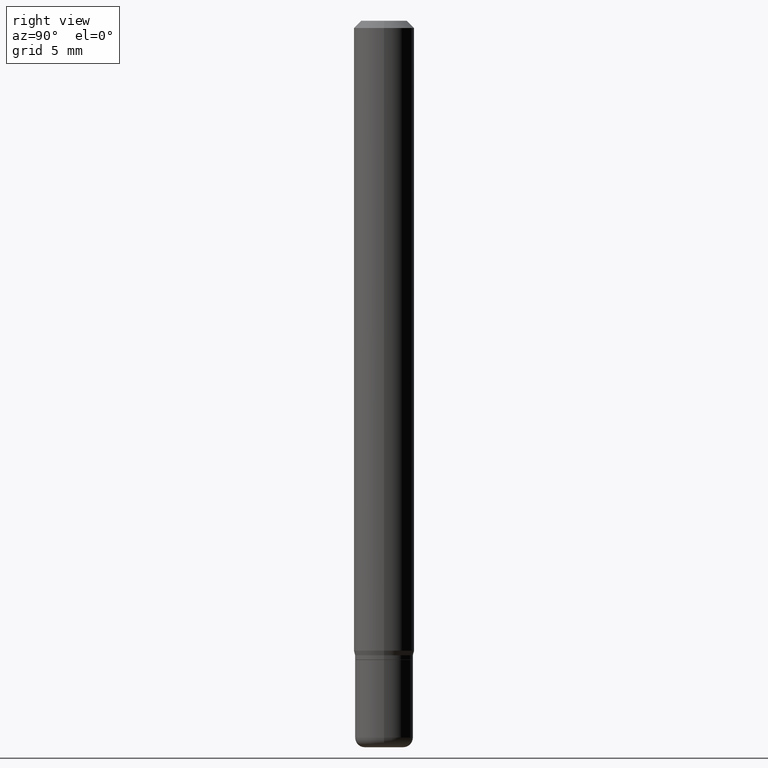
[diagram: clean part render]
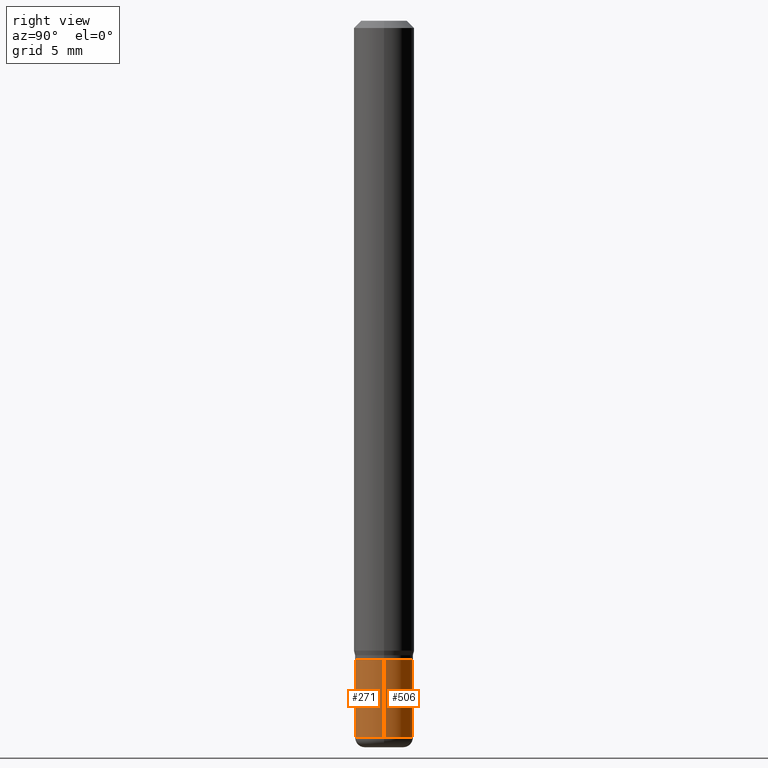
[diagram: same view with one multi-face feature highlighted, each face labeled with its STEP entity id]
A machine part, right view. The highlighted faces form ONE feature: a constant-radius fillet chain: 2 tangent blend faces with common blend radius 1.524 mm. The faces share edges in the B-rep.
Their STEP definitions:
[1] entity #506 (Cylinder):
#11 = DIRECTION ( 'NONE',  ( -2.445468806185136877E-29, 3.491481338843145188E-15, 1.000000000000000000 ) ) ;
#15 = CARTESIAN_POINT ( 'NONE',  ( 0.05999999999999999778, -5.027733127934128282E-15, -1.320000000000000062 ) ) ;
#21 = CIRCLE ( 'NONE', #202, 0.05999999999999999778 ) ;
#26 = ORIENTED_EDGE ( 'NONE', *, *, #77, .F. ) ;
#48 = LINE ( 'NONE', #369, #381 ) ;
#55 = CARTESIAN_POINT ( 'NONE',  ( -0.05999999999999999778, -4.461748232924343562E-15, -1.320000000000000062 ) ) ;
#64 = ORIENTED_EDGE ( 'NONE', *, *, #180, .T. ) ;
#70 = DIRECTION ( 'NONE',  ( 1.000000000000000000, -6.982962677686264344E-15, 0.000000000000000000 ) ) ;
#76 = CARTESIAN_POINT ( 'NONE',  ( 0.06000000000000001860, -4.189777606611761407E-16, 2.925706065477562457E-30 ) ) ;
#77 = EDGE_CURVE ( 'NONE', #371, #416, #21, .T. ) ;
#88 = DIRECTION ( 'NONE',  ( 1.000000000000000000, -6.982962677686266711E-15, 4.876176775795935793E-29 ) ) ;
#97 = AXIS2_PLACEMENT_3D ( 'NONE', #474, #433, #70 ) ;
#120 = AXIS2_PLACEMENT_3D ( 'NONE', #301, #460, #88 ) ;
#138 = CYLINDRICAL_SURFACE ( 'NONE', #120, 0.06000000000000001860 ) ;
#150 = DIRECTION ( 'NONE',  ( -2.445468806185136597E-29, 3.491481338843145583E-15, 1.000000000000000000 ) ) ;
#172 = VERTEX_POINT ( 'NONE', #313 ) ;
#180 = EDGE_CURVE ( 'NONE', #172, #374, #323, .T. ) ;
#193 = CARTESIAN_POINT ( 'NONE',  ( 3.228018824164380442E-29, -4.608755367272952437E-15, -1.320000000000000062 ) ) ;
#198 = ORIENTED_EDGE ( 'NONE', *, *, #377, .T. ) ;
#202 = AXIS2_PLACEMENT_3D ( 'NONE', #193, #150, #260 ) ;
#223 = VECTOR ( 'NONE', #403, 39.37007874015748143 ) ;
#246 = CARTESIAN_POINT ( 'NONE',  ( -0.06000000000000003247, -4.461748232924343562E-15, -1.479999999999999982 ) ) ;
#260 = DIRECTION ( 'NONE',  ( 1.000000000000000000, -6.982962677686268288E-15, 0.000000000000000000 ) ) ;
#290 = EDGE_CURVE ( 'NONE', #172, #371, #440, .T. ) ;
#301 = CARTESIAN_POINT ( 'NONE',  ( 0.000000000000000000, 0.000000000000000000, 0.000000000000000000 ) ) ;
#313 = CARTESIAN_POINT ( 'NONE',  ( 0.06000000000000003247, -5.586370142149031512E-15, -1.479999999999999982 ) ) ;
#322 = ORIENTED_EDGE ( 'NONE', *, *, #290, .F. ) ;
#323 = CIRCLE ( 'NONE', #97, 0.06000000000000003247 ) ;
#369 = CARTESIAN_POINT ( 'NONE',  ( -0.06000000000000001860, 4.263256414560602437E-16, -2.951361054152944114E-30 ) ) ;
#371 = VERTEX_POINT ( 'NONE', #15 ) ;
#374 = VERTEX_POINT ( 'NONE', #246 ) ;
#377 = EDGE_CURVE ( 'NONE', #374, #416, #48, .T. ) ;
#381 = VECTOR ( 'NONE', #11, 39.37007874015748143 ) ;
#403 = DIRECTION ( 'NONE',  ( -2.445468806185136877E-29, 3.491481338843145188E-15, 1.000000000000000000 ) ) ;
#416 = VERTEX_POINT ( 'NONE', #55 ) ;
#433 = DIRECTION ( 'NONE',  ( -2.445468806185136597E-29, 3.491481338843145583E-15, 1.000000000000000000 ) ) ;
#440 = LINE ( 'NONE', #76, #223 ) ;
#460 = DIRECTION ( 'NONE',  ( -2.445468806185136597E-29, 3.491481338843145583E-15, 1.000000000000000000 ) ) ;
#474 = CARTESIAN_POINT ( 'NONE',  ( 3.619293833154002365E-29, -5.167392381487854879E-15, -1.479999999999999982 ) ) ;
#492 = EDGE_LOOP ( 'NONE', ( #64, #198, #26, #322 ) ) ;
#499 = FACE_OUTER_BOUND ( 'NONE', #492, .T. ) ;
#506 = ADVANCED_FACE ( 'NONE', ( #499 ), #138, .T. ) ;
[2] entity #271 (Cylinder):
#11 = DIRECTION ( 'NONE',  ( -2.445468806185136877E-29, 3.491481338843145188E-15, 1.000000000000000000 ) ) ;
#15 = CARTESIAN_POINT ( 'NONE',  ( 0.05999999999999999778, -5.027733127934128282E-15, -1.320000000000000062 ) ) ;
#28 = CARTESIAN_POINT ( 'NONE',  ( 3.619293833154002365E-29, -5.167392381487854879E-15, -1.479999999999999982 ) ) ;
#29 = EDGE_CURVE ( 'NONE', #374, #172, #486, .T. ) ;
#45 = CARTESIAN_POINT ( 'NONE',  ( 0.000000000000000000, 0.000000000000000000, 0.000000000000000000 ) ) ;
#48 = LINE ( 'NONE', #369, #381 ) ;
#55 = CARTESIAN_POINT ( 'NONE',  ( -0.05999999999999999778, -4.461748232924343562E-15, -1.320000000000000062 ) ) ;
#66 = AXIS2_PLACEMENT_3D ( 'NONE', #28, #147, #318 ) ;
#75 = CIRCLE ( 'NONE', #372, 0.05999999999999999778 ) ;
#76 = CARTESIAN_POINT ( 'NONE',  ( 0.06000000000000001860, -4.189777606611761407E-16, 2.925706065477562457E-30 ) ) ;
#147 = DIRECTION ( 'NONE',  ( -2.445468806185136597E-29, 3.491481338843145583E-15, 1.000000000000000000 ) ) ;
#158 = CARTESIAN_POINT ( 'NONE',  ( 3.228018824164380442E-29, -4.608755367272952437E-15, -1.320000000000000062 ) ) ;
#161 = DIRECTION ( 'NONE',  ( -2.445468806185136597E-29, 3.491481338843145583E-15, 1.000000000000000000 ) ) ;
#172 = VERTEX_POINT ( 'NONE', #313 ) ;
#199 = FACE_OUTER_BOUND ( 'NONE', #498, .T. ) ;
#223 = VECTOR ( 'NONE', #403, 39.37007874015748143 ) ;
#246 = CARTESIAN_POINT ( 'NONE',  ( -0.06000000000000003247, -4.461748232924343562E-15, -1.479999999999999982 ) ) ;
#271 = ADVANCED_FACE ( 'NONE', ( #199 ), #368, .T. ) ;
#279 = DIRECTION ( 'NONE',  ( 1.000000000000000000, -6.982962677686266711E-15, 4.876176775795935793E-29 ) ) ;
#282 = DIRECTION ( 'NONE',  ( -2.445468806185136597E-29, 3.491481338843145583E-15, 1.000000000000000000 ) ) ;
#290 = EDGE_CURVE ( 'NONE', #172, #371, #440, .T. ) ;
#291 = ORIENTED_EDGE ( 'NONE', *, *, #377, .F. ) ;
#313 = CARTESIAN_POINT ( 'NONE',  ( 0.06000000000000003247, -5.586370142149031512E-15, -1.479999999999999982 ) ) ;
#318 = DIRECTION ( 'NONE',  ( 1.000000000000000000, -6.982962677686264344E-15, 0.000000000000000000 ) ) ;
#324 = EDGE_CURVE ( 'NONE', #416, #371, #75, .T. ) ;
#339 = ORIENTED_EDGE ( 'NONE', *, *, #290, .T. ) ;
#368 = CYLINDRICAL_SURFACE ( 'NONE', #505, 0.06000000000000001860 ) ;
#369 = CARTESIAN_POINT ( 'NONE',  ( -0.06000000000000001860, 4.263256414560602437E-16, -2.951361054152944114E-30 ) ) ;
#371 = VERTEX_POINT ( 'NONE', #15 ) ;
#372 = AXIS2_PLACEMENT_3D ( 'NONE', #158, #282, #442 ) ;
#374 = VERTEX_POINT ( 'NONE', #246 ) ;
#377 = EDGE_CURVE ( 'NONE', #374, #416, #48, .T. ) ;
#381 = VECTOR ( 'NONE', #11, 39.37007874015748143 ) ;
#386 = ORIENTED_EDGE ( 'NONE', *, *, #324, .F. ) ;
#403 = DIRECTION ( 'NONE',  ( -2.445468806185136877E-29, 3.491481338843145188E-15, 1.000000000000000000 ) ) ;
#416 = VERTEX_POINT ( 'NONE', #55 ) ;
#440 = LINE ( 'NONE', #76, #223 ) ;
#442 = DIRECTION ( 'NONE',  ( 1.000000000000000000, -6.982962677686268288E-15, 0.000000000000000000 ) ) ;
#486 = CIRCLE ( 'NONE', #66, 0.06000000000000003247 ) ;
#494 = ORIENTED_EDGE ( 'NONE', *, *, #29, .T. ) ;
#498 = EDGE_LOOP ( 'NONE', ( #291, #494, #339, #386 ) ) ;
#505 = AXIS2_PLACEMENT_3D ( 'NONE', #45, #161, #279 ) ;